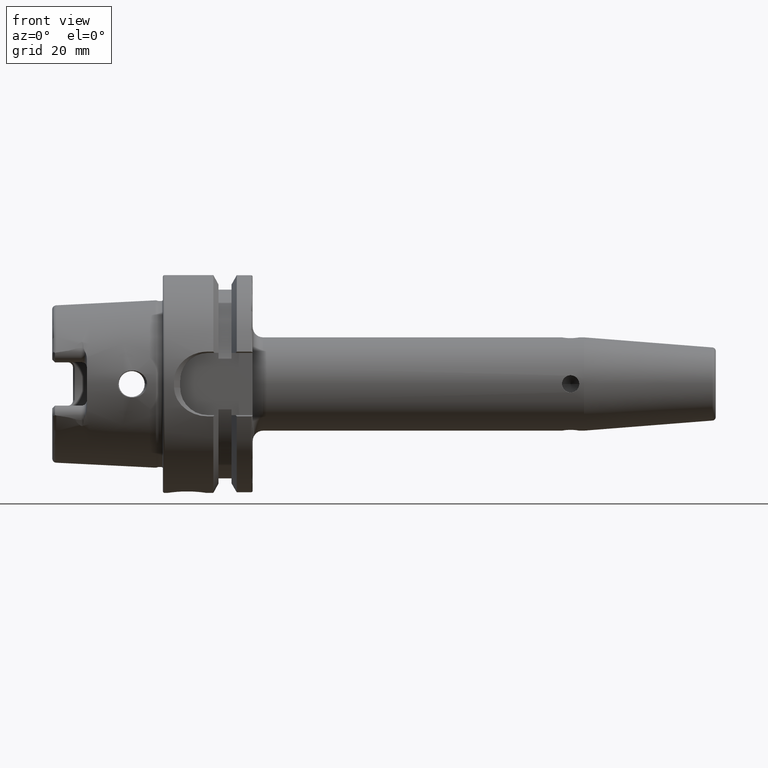
[diagram: clean part render]
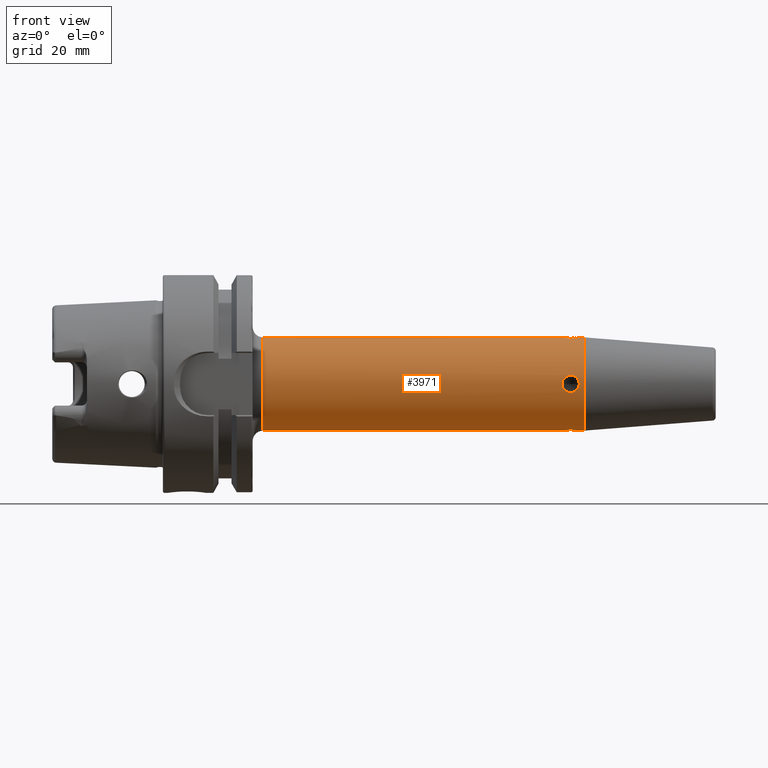
[diagram: same view with one face highlighted and labeled with its STEP entity id]
A machine part, front view. The second image highlights one B-rep face of the part: STEP entity #3971.
In plain terms, the highlighted cylindrical surface (partial cylindrical patch) has radius 13.5 mm, axis along (1, 0, 0).
Its self-contained STEP definition (entity closure, byte-faithful):
#623=CARTESIAN_POINT('',(1.155E2,0.E0,1.35E1));
#636=CARTESIAN_POINT('',(1.205E2,0.E0,1.35E1));
#643=CARTESIAN_POINT('',(1.205E2,0.E0,-1.35E1));
#656=CARTESIAN_POINT('',(1.155E2,0.E0,-1.35E1));
#707=CARTESIAN_POINT('',(1.205E2,0.E0,1.35E1));
#708=CARTESIAN_POINT('',(1.205E2,-2.403809010489E-1,1.35E1));
#709=CARTESIAN_POINT('',(1.204337903253E2,-7.024529545094E-1,1.348750787080E1));
#710=CARTESIAN_POINT('',(1.201361751708E2,-1.365585899846E0,1.343555102244E1));
#711=CARTESIAN_POINT('',(1.196597535956E2,-1.914483941887E0,1.336635014342E1));
#712=CARTESIAN_POINT('',(1.190594188829E2,-2.302575494014E0,1.330328472023E1));
#713=CARTESIAN_POINT('',(1.183573483718E2,-2.508913449340E0,1.326487359170E1));
#714=CARTESIAN_POINT('',(1.176451873376E2,-2.509196251394E0,1.326481634790E1));
#715=CARTESIAN_POINT('',(1.169435984765E2,-2.303974571964E0,1.330303735112E1));
#716=CARTESIAN_POINT('',(1.163419364652E2,-1.916068853388E0,1.336612199661E1));
#717=CARTESIAN_POINT('',(1.158647206894E2,-1.367106278912E0,1.343540290298E1));
#718=CARTESIAN_POINT('',(1.155663450709E2,-7.032413145154E-1,1.348748050487E1));
#719=CARTESIAN_POINT('',(1.155E2,-2.406691250141E-1,1.35E1));
#720=CARTESIAN_POINT('',(1.155E2,0.E0,1.35E1));
#722=DIRECTION('',(-1.E0,0.E0,0.E0));
#723=VECTOR('',#722,1.381385791476E0);
#724=CARTESIAN_POINT('',(1.218813857915E2,0.E0,1.35E1));
#725=LINE('',#724,#723);
#726=CARTESIAN_POINT('',(1.218813857915E2,0.E0,0.E0));
#727=DIRECTION('',(-1.E0,0.E0,0.E0));
#728=DIRECTION('',(0.E0,0.E0,-1.E0));
#729=AXIS2_PLACEMENT_3D('',#726,#727,#728);
#731=DIRECTION('',(-1.E0,0.E0,0.E0));
#732=VECTOR('',#731,1.381385791476E0);
#733=CARTESIAN_POINT('',(1.218813857915E2,0.E0,-1.35E1));
#734=LINE('',#733,#732);
#735=CARTESIAN_POINT('',(1.155E2,0.E0,-1.35E1));
#736=CARTESIAN_POINT('',(1.155E2,-2.402580512246E-1,-1.35E1));
#737=CARTESIAN_POINT('',(1.155661755315E2,-7.021620998339E-1,
-1.348751632950E1));
#738=CARTESIAN_POINT('',(1.158634192423E2,-1.364980319110E0,-1.343561492130E1));
#739=CARTESIAN_POINT('',(1.163401101008E2,-1.914392003579E0,-1.336636723634E1));
#740=CARTESIAN_POINT('',(1.169401878923E2,-2.302381651297E0,-1.330331726472E1));
#741=CARTESIAN_POINT('',(1.176425154126E2,-2.508933978670E0,-1.326487090678E1));
#742=CARTESIAN_POINT('',(1.183547923576E2,-2.509170196852E0,-1.326482023355E1));
#743=CARTESIAN_POINT('',(1.190560485320E2,-2.304139620831E0,-1.330300932059E1));
#744=CARTESIAN_POINT('',(1.196580356497E2,-1.916102387542E0,-1.336611615819E1));
#745=CARTESIAN_POINT('',(1.201350958423E2,-1.367368658618E0,-1.343537491726E1));
#746=CARTESIAN_POINT('',(1.204336418456E2,-7.033684170460E-1,
-1.348747683781E1));
#747=CARTESIAN_POINT('',(1.205E2,-2.407230343011E-1,-1.35E1));
#748=CARTESIAN_POINT('',(1.205E2,0.E0,-1.35E1));
#750=DIRECTION('',(-1.E0,8.075154225449E-12,0.E0));
#751=VECTOR('',#750,8.65E1);
#752=CARTESIAN_POINT('',(1.155E2,0.E0,-1.35E1));
#753=LINE('',#752,#751);
#754=CARTESIAN_POINT('',(2.9E1,0.E0,0.E0));
#755=DIRECTION('',(1.E0,0.E0,0.E0));
#756=DIRECTION('',(0.E0,0.E0,1.E0));
#757=AXIS2_PLACEMENT_3D('',#754,#755,#756);
#759=DIRECTION('',(-1.E0,-8.075180142794E-12,0.E0));
#760=VECTOR('',#759,8.65E1);
#761=CARTESIAN_POINT('',(1.155E2,0.E0,1.35E1));
#762=LINE('',#761,#760);
#763=CARTESIAN_POINT('',(1.155E2,-1.35E1,0.E0));
#764=CARTESIAN_POINT('',(1.155E2,-1.35E1,2.641564317072E-1));
#765=CARTESIAN_POINT('',(1.155774134802E2,-1.348523309E1,7.691924929587E-1));
#766=CARTESIAN_POINT('',(1.159502441138E2,-1.342123579776E1,1.506765394452E0));
#767=CARTESIAN_POINT('',(1.165201921890E2,-1.334345184856E1,2.066910454716E0));
#768=CARTESIAN_POINT('',(1.172429185619E2,-1.328082253952E1,2.426237333027E0));
#769=CARTESIAN_POINT('',(1.179993257420E2,-1.325984921593E1,2.534455323334E0));
#770=CARTESIAN_POINT('',(1.186777631054E2,-1.327881781784E1,2.435717154628E0));
#771=CARTESIAN_POINT('',(1.192699267765E2,-1.332332885405E1,2.184943258866E0));
#772=CARTESIAN_POINT('',(1.197856184696E2,-1.338346811352E1,1.789918139461E0));
#773=CARTESIAN_POINT('',(1.201925879676E2,-1.344513853126E1,1.263598751215E0));
#774=CARTESIAN_POINT('',(1.204485363889E2,-1.349028449865E1,6.311670904364E-1));
#775=CARTESIAN_POINT('',(1.205E2,-1.35E1,2.136762019341E-1));
#776=CARTESIAN_POINT('',(1.205E2,-1.35E1,0.E0));
#778=CARTESIAN_POINT('',(1.205E2,-1.35E1,0.E0));
#779=CARTESIAN_POINT('',(1.205E2,-1.35E1,-2.631605834370E-1));
#780=CARTESIAN_POINT('',(1.204231952605E2,-1.348534996524E1,
-7.664079070963E-1));
#781=CARTESIAN_POINT('',(1.200527476864E2,-1.342173133164E1,-1.502057627745E0));
#782=CARTESIAN_POINT('',(1.194875979587E2,-1.334441643409E1,-2.060651815634E0));
#783=CARTESIAN_POINT('',(1.187711359758E2,-1.328173623128E1,-2.421357035566E0));
#784=CARTESIAN_POINT('',(1.180180778110E2,-1.325987540935E1,-2.534322114604E0));
#785=CARTESIAN_POINT('',(1.173383097072E2,-1.327796461211E1,-2.440253279573E0));
#786=CARTESIAN_POINT('',(1.167431010898E2,-1.332204099057E1,-2.192668439777E0));
#787=CARTESIAN_POINT('',(1.162230876112E2,-1.338225550803E1,-1.798910877757E0));
#788=CARTESIAN_POINT('',(1.158116291739E2,-1.344441695955E1,-1.271701858964E0));
#789=CARTESIAN_POINT('',(1.155520531279E2,-1.349016887783E1,
-6.350944251809E-1));
#790=CARTESIAN_POINT('',(1.155E2,-1.35E1,-2.150754788045E-1));
#791=CARTESIAN_POINT('',(1.155E2,-1.35E1,0.E0));
#3094=CARTESIAN_POINT('',(1.218813857915E2,0.E0,-1.35E1));
#3095=CARTESIAN_POINT('',(1.218813857915E2,0.E0,1.35E1));
#3096=VERTEX_POINT('',#3094);
#3097=VERTEX_POINT('',#3095);
#3110=CARTESIAN_POINT('',(2.9E1,0.E0,1.35E1));
#3111=CARTESIAN_POINT('',(2.9E1,0.E0,-1.35E1));
#3112=VERTEX_POINT('',#3110);
#3113=VERTEX_POINT('',#3111);
#3144=VERTEX_POINT('',#643);
#3145=VERTEX_POINT('',#656);
#3160=VERTEX_POINT('',#623);
#3161=VERTEX_POINT('',#636);
#3168=VERTEX_POINT('',#763);
#3169=VERTEX_POINT('',#776);
#3948=CARTESIAN_POINT('',(1.93E1,0.E0,0.E0));
#3949=DIRECTION('',(1.E0,0.E0,0.E0));
#3950=DIRECTION('',(0.E0,0.E0,1.E0));
#3951=AXIS2_PLACEMENT_3D('',#3948,#3949,#3950);
#3952=CYLINDRICAL_SURFACE('',#3951,1.35E1);
#3953=ORIENTED_EDGE('',*,*,#3939,.F.);
#3954=ORIENTED_EDGE('',*,*,#3856,.F.);
#3955=ORIENTED_EDGE('',*,*,#3805,.F.);
#3956=ORIENTED_EDGE('',*,*,#3853,.T.);
#3958=ORIENTED_EDGE('',*,*,#3957,.F.);
#3959=ORIENTED_EDGE('',*,*,#3849,.T.);
#3961=ORIENTED_EDGE('',*,*,#3960,.F.);
#3962=ORIENTED_EDGE('',*,*,#3845,.F.);
#3963=EDGE_LOOP('',(#3953,#3954,#3955,#3956,#3958,#3959,#3961,#3962));
#3964=FACE_OUTER_BOUND('',#3963,.F.);
#3966=ORIENTED_EDGE('',*,*,#3965,.F.);
#3968=ORIENTED_EDGE('',*,*,#3967,.F.);
#3969=EDGE_LOOP('',(#3966,#3968));
#3970=FACE_BOUND('',#3969,.F.);
#3971=ADVANCED_FACE('',(#3964,#3970),#3952,.T.);
#721=B_SPLINE_CURVE_WITH_KNOTS('',3,(#707,#708,#709,#710,#711,#712,#713,#714,
#715,#716,#717,#718,#719,#720),.UNSPECIFIED.,.F.,.F.,(4,1,1,1,1,1,1,1,1,1,1,4),(
0.E0,9.090909090909E-2,1.818181818182E-1,2.727272727273E-1,3.636363636364E-1,
4.545454545455E-1,5.454545454545E-1,6.363636363636E-1,7.272727272727E-1,
8.181818181818E-1,9.090909090909E-1,1.E0),.UNSPECIFIED.);
#730=CIRCLE('',#729,1.35E1);
#749=B_SPLINE_CURVE_WITH_KNOTS('',3,(#735,#736,#737,#738,#739,#740,#741,#742,
#743,#744,#745,#746,#747,#748),.UNSPECIFIED.,.F.,.F.,(4,1,1,1,1,1,1,1,1,1,1,4),(
0.E0,9.090909090909E-2,1.818181818182E-1,2.727272727273E-1,3.636363636364E-1,
4.545454545455E-1,5.454545454545E-1,6.363636363636E-1,7.272727272727E-1,
8.181818181818E-1,9.090909090909E-1,1.E0),.UNSPECIFIED.);
#758=CIRCLE('',#757,1.35E1);
#777=B_SPLINE_CURVE_WITH_KNOTS('',3,(#763,#764,#765,#766,#767,#768,#769,#770,
#771,#772,#773,#774,#775,#776),.UNSPECIFIED.,.F.,.F.,(4,1,1,1,1,1,1,1,1,1,1,4),(
0.E0,9.090909090909E-2,1.818181818182E-1,2.727272727273E-1,3.636363636364E-1,
4.545454545455E-1,5.454545454545E-1,6.363636363636E-1,7.272727272727E-1,
8.181818181818E-1,9.090909090909E-1,1.E0),.UNSPECIFIED.);
#792=B_SPLINE_CURVE_WITH_KNOTS('',3,(#778,#779,#780,#781,#782,#783,#784,#785,
#786,#787,#788,#789,#790,#791),.UNSPECIFIED.,.F.,.F.,(4,1,1,1,1,1,1,1,1,1,1,4),(
0.E0,9.090909090909E-2,1.818181818182E-1,2.727272727273E-1,3.636363636364E-1,
4.545454545455E-1,5.454545454545E-1,6.363636363636E-1,7.272727272727E-1,
8.181818181818E-1,9.090909090909E-1,1.E0),.UNSPECIFIED.);
#3805=EDGE_CURVE('',#3096,#3097,#730,.T.);
#3845=EDGE_CURVE('',#3160,#3112,#762,.T.);
#3849=EDGE_CURVE('',#3145,#3113,#753,.T.);
#3853=EDGE_CURVE('',#3096,#3144,#734,.T.);
#3856=EDGE_CURVE('',#3097,#3161,#725,.T.);
#3939=EDGE_CURVE('',#3161,#3160,#721,.T.);
#3957=EDGE_CURVE('',#3145,#3144,#749,.T.);
#3960=EDGE_CURVE('',#3112,#3113,#758,.T.);
#3965=EDGE_CURVE('',#3168,#3169,#777,.T.);
#3967=EDGE_CURVE('',#3169,#3168,#792,.T.);